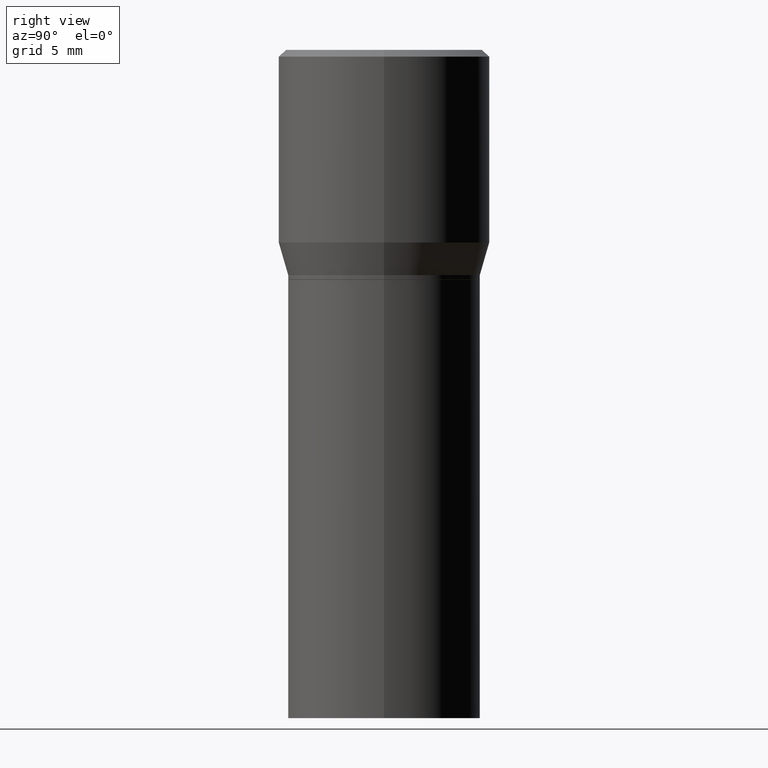
[diagram: clean part render]
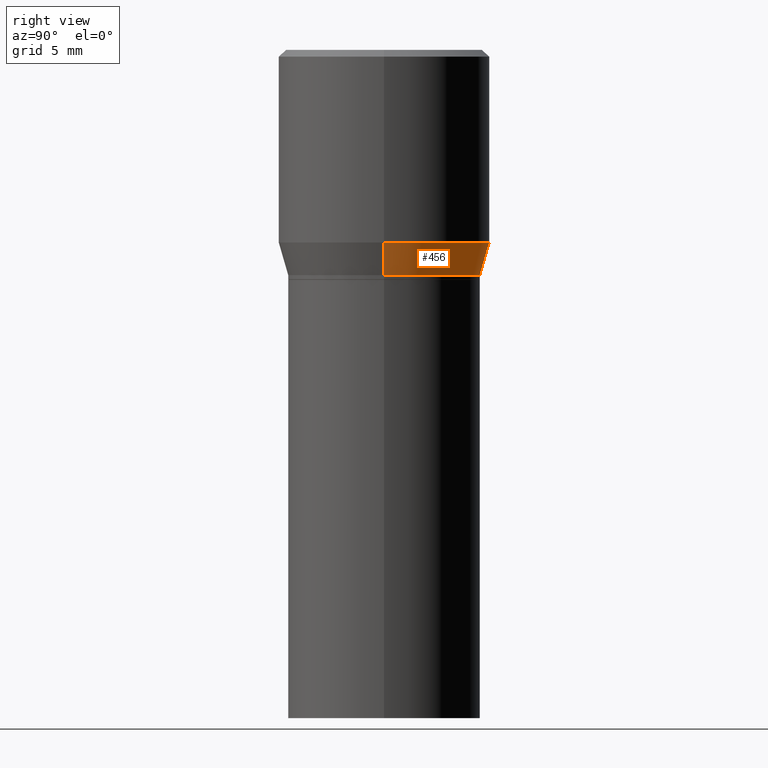
[diagram: same view with one face highlighted and labeled with its STEP entity id]
A machine part, right view. The second image highlights one B-rep face of the part: STEP entity #456.
In plain terms, the highlighted conical surface has half-angle 15 deg.
Its self-contained STEP definition (entity closure, byte-faithful):
#23 = CIRCLE ( 'NONE', #280, 0.2361999999999999933 ) ;
#47 = CARTESIAN_POINT ( 'NONE',  ( 0.2361999999999999933, -3.158970817530236235E-15, -0.4323652016312719004 ) ) ;
#67 = EDGE_CURVE ( 'NONE', #353, #367, #244, .T. ) ;
#92 = CARTESIAN_POINT ( 'NONE',  ( 1.236673575287824021E-29, -1.765642113052979313E-15, -0.5057000000000001494 ) ) ;
#102 = ORIENTED_EDGE ( 'NONE', *, *, #413, .T. ) ;
#106 = LINE ( 'NONE', #167, #409 ) ;
#114 = CARTESIAN_POINT ( 'NONE',  ( 1.057335613469222325E-29, -1.509595033060739709E-15, -0.4323652016312719004 ) ) ;
#119 = CARTESIAN_POINT ( 'NONE',  ( 1.236673575287824021E-29, -1.765642113052979313E-15, -0.5057000000000001494 ) ) ;
#140 = VERTEX_POINT ( 'NONE', #47 ) ;
#155 = EDGE_CURVE ( 'NONE', #140, #251, #23, .T. ) ;
#167 = CARTESIAN_POINT ( 'NONE',  ( 0.2165500000000000480, -3.277802680905940530E-15, -0.5057000000000001494 ) ) ;
#185 = DIRECTION ( 'NONE',  ( -2.445468806185136597E-29, 3.491481338843145583E-15, 1.000000000000000000 ) ) ;
#191 = AXIS2_PLACEMENT_3D ( 'NONE', #92, #195, #306 ) ;
#195 = DIRECTION ( 'NONE',  ( -2.445468806185136597E-29, 3.491481338843145583E-15, 1.000000000000000000 ) ) ;
#244 = CIRCLE ( 'NONE', #393, 0.2165500000000000480 ) ;
#251 = VERTEX_POINT ( 'NONE', #390 ) ;
#256 = ORIENTED_EDGE ( 'NONE', *, *, #355, .F. ) ;
#258 = DIRECTION ( 'NONE',  ( -0.2588190451025206840, 5.211531920934545520E-15, 0.9659258262890682012 ) ) ;
#280 = AXIS2_PLACEMENT_3D ( 'NONE', #114, #185, #339 ) ;
#283 = LINE ( 'NONE', #318, #358 ) ;
#284 = ORIENTED_EDGE ( 'NONE', *, *, #67, .T. ) ;
#306 = DIRECTION ( 'NONE',  ( 1.000000000000000000, -6.982962677686266711E-15, 0.000000000000000000 ) ) ;
#318 = CARTESIAN_POINT ( 'NONE',  ( -0.2165500000000000480, -2.269618187644819696E-16, -0.5057000000000001494 ) ) ;
#322 = DIRECTION ( 'NONE',  ( 0.2588190451025206840, 1.565188264969626504E-15, 0.9659258262890682012 ) ) ;
#328 = CARTESIAN_POINT ( 'NONE',  ( 0.2165500000000000480, -3.277802680905940530E-15, -0.5057000000000001494 ) ) ;
#339 = DIRECTION ( 'NONE',  ( 1.000000000000000000, -6.982962677686268288E-15, 0.000000000000000000 ) ) ;
#341 = DIRECTION ( 'NONE',  ( 1.000000000000000000, -6.982962677686266711E-15, 0.000000000000000000 ) ) ;
#353 = VERTEX_POINT ( 'NONE', #328 ) ;
#355 = EDGE_CURVE ( 'NONE', #353, #140, #106, .T. ) ;
#358 = VECTOR ( 'NONE', #258, 39.37007874015748854 ) ;
#359 = CONICAL_SURFACE ( 'NONE', #191, 0.2165500000000000480, 0.2617993877991494078 ) ;
#367 = VERTEX_POINT ( 'NONE', #397 ) ;
#387 = ORIENTED_EDGE ( 'NONE', *, *, #155, .F. ) ;
#390 = CARTESIAN_POINT ( 'NONE',  ( -0.2361999999999999933, 1.687069088046168326E-16, -0.4323652016312719004 ) ) ;
#393 = AXIS2_PLACEMENT_3D ( 'NONE', #119, #407, #341 ) ;
#397 = CARTESIAN_POINT ( 'NONE',  ( -0.2165500000000000480, -2.912745497993258696E-17, -0.5057000000000001494 ) ) ;
#403 = EDGE_LOOP ( 'NONE', ( #284, #102, #387, #256 ) ) ;
#407 = DIRECTION ( 'NONE',  ( -2.445468806185136597E-29, 3.491481338843145583E-15, 1.000000000000000000 ) ) ;
#409 = VECTOR ( 'NONE', #322, 39.37007874015748854 ) ;
#413 = EDGE_CURVE ( 'NONE', #367, #251, #283, .T. ) ;
#419 = FACE_OUTER_BOUND ( 'NONE', #403, .T. ) ;
#456 = ADVANCED_FACE ( 'NONE', ( #419 ), #359, .T. ) ;